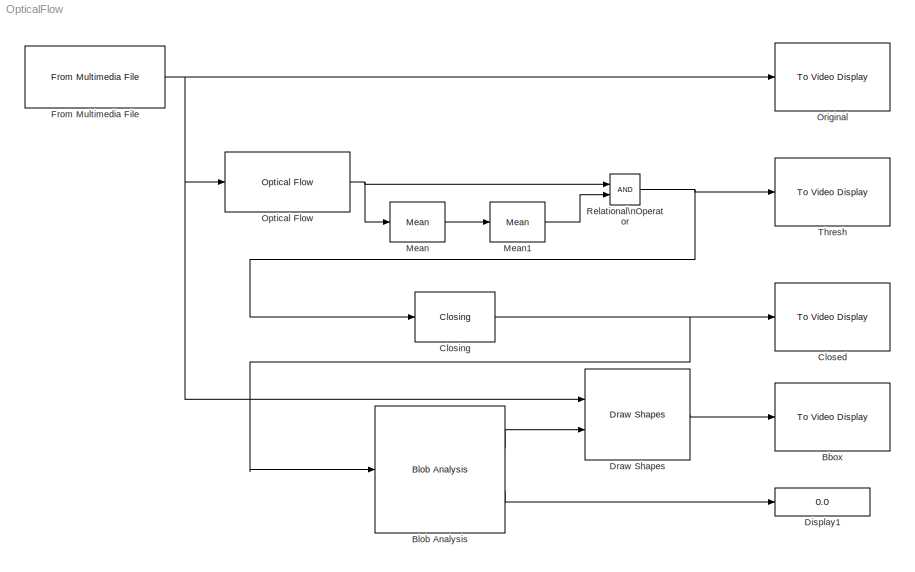
MODEL OpticalFlow
KIND model
BLOCK [Reference] Bbox  REF=vipsnks/To Video Display
  OutputDevice = On-screen video monitor
  Ports = [1]
  SID = 1
  SourceBlock = vipsnks/To Video Display
  SourceProductBaseCode = VP
  SourceProductName = Computer Vision Toolbox
  SourceType = To Video Display
  dataOrg = Column-major
  fullScreen = off
  imagePorts = One multidimensional signal
  inputType = Obsolete
  saveWindowSize = off
  videoWindowHeight = 41
  videoWindowWidth = 44
  videoWindowX = 289
  videoWindowY = 479
BLOCK [Reference] Blob Analysis  REF=vipstatistics/Blob Analysis
  LockScale = off
  Ports = [1, 2]
  SID = 2
  SourceBlock = vipstatistics/Blob Analysis
  SourceProductBaseCode = VP
  SourceProductName = Computer Vision Toolbox
  SourceType = Blob Analysis
  accumFracLength = 0
  accumMode = Binary point scaling
  accumWordLength = 32
  angle = off
  area = off
  bBox = on
  centroid = off
  conn = 8
  eccentricity = off
  equivDiameterSq = off
  excludeBorderBlob = off
  extent = off
  fillValues = -1
  firstCoeffFracLength = 14
  firstCoeffMode = Binary point scaling
  firstCoeffWordLength = 16
  isCount = on
  isFill = on
  isLabel = off
  isOutVarDim = off
  majorAxis = off
  maxArea = intmax('uint32')
  maxBlobs = 50
  memoryFracLength = 16
  memoryMode = Same as product output
  memoryWordLength = 32
  minArea = 200
  minorAxis = off
  outDT = double
  outputFracLength = 16
  outputMode = Binary point scaling
  outputWordLength = 32
  overflowMode = off
  perimeter = off
  prodOutputFracLength = 16
  prodOutputMode = Binary point scaling
  prodOutputWordLength = 32
  roundingMode = Floor
  secondCoeffFracLength = 16
  secondCoeffMode = Binary point scaling
  secondCoeffWordLength = 32
  useMaxArea = off
  useMinArea = on
  warnIfNumBlobsExceeded = on
BLOCK [Reference] Closed  REF=vipsnks/To Video Display
  OutputDevice = On-screen video monitor
  Ports = [1]
  SID = 3
  SourceBlock = vipsnks/To Video Display
  SourceProductBaseCode = VP
  SourceProductName = Computer Vision Toolbox
  SourceType = To Video Display
  dataOrg = Column-major
  fullScreen = off
  imagePorts = One multidimensional signal
  inputType = Obsolete
  saveWindowSize = off
  videoWindowHeight = 41
  videoWindowWidth = 44
  videoWindowX = 292
  videoWindowY = 332
BLOCK [Reference] Closing  REF=vipmorphops/Closing
  Ports = [1, 1]
  SID = 4
  SourceBlock = vipmorphops/Closing
  SourceProductBaseCode = VP
  SourceProductName = Computer Vision Toolbox
  SourceType = Closing
  nhoodsrc = Specify via dialog
  strel = strel('disk',5)
BLOCK [Display] Display1
  Decimation = 1
  Ports = [1]
  SID = 5
BLOCK [Reference] Draw Shapes  REF=viptextngfix/Draw Shapes
  Ports = [2, 1]
  SID = 6
  SourceBlock = viptextngfix/Draw Shapes
  SourceProductBaseCode = VP
  SourceProductName = Computer Vision Toolbox
  SourceType = Draw Shapes
  antialiasing = off
  color = [200 255 100]
  display = Black
  fill = off
  imagePorts = One multidimensional signal
  inType = Obsolete
  intensity = 200
  opacity = 0.6
  shape = Rectangles
  viewport = Entire image
BLOCK [Reference] From Multimedia File  REF=dspsrcs4/From Multimedia File
  Ports = [0, 1]
  SID = 7
  SourceBlock = dspsrcs4/From Multimedia File
  SourceProductBaseCode = DS
  SourceProductName = DSP System Toolbox
  SourceType = From Multimedia File
  audioDataType = int16
  colorVideoFormat = One multidimensional signal
  dataOrg = Column-major
  inheritSampleTime = on
  inputFilename = viptraffic.avi
  isIntensityVideo = on
  loop = on
  noAudioOutput = off
  numPlays = inf
  outputEOF = off
  outputStreams = Video only
  userDefinedSampleTime = 1/30
  videoDataType = double
BLOCK [Reference] Mean  REF=dspstat3/Mean
  LockScale = off
  Ports = [1, 1]
  SID = 8
  SourceBlock = dspstat3/Mean
  SourceProductBaseCode = DS
  SourceProductName = DSP System Toolbox
  SourceType = Mean
  accumFracLength = 30
  accumMode = Same as input
  accumWordLength = 32
  additionalParams = off
  allowOverrides = on
  dimension = 1
  directionMode = Entire input
  outputFracLength = 30
  outputMode = Same as accumulator
  outputWordLength = 32
  overflowMode = off
  reset_popup = None
  roiEnable = off
  roiFlag = off
  roiOutput = Individual statistics for each ROI
  roiPortion = Entire ROI
  roiType = Rectangles
  roundingMode = Floor
  run = off
  treatSBRowAsCol = on
BLOCK [Reference] Mean1  REF=dspstat3/Mean
  LockScale = off
  Ports = [1, 1]
  SID = 9
  SourceBlock = dspstat3/Mean
  SourceProductBaseCode = DS
  SourceProductName = DSP System Toolbox
  SourceType = Mean
  accumFracLength = 30
  accumMode = Same as input
  accumWordLength = 32
  additionalParams = off
  allowOverrides = on
  dimension = 1
  directionMode = Entire input
  outputFracLength = 30
  outputMode = Same as accumulator
  outputWordLength = 32
  overflowMode = off
  reset_popup = None
  roiEnable = off
  roiFlag = off
  roiOutput = Individual statistics for each ROI
  roiPortion = Entire ROI
  roiType = Rectangles
  roundingMode = Floor
  run = on
  treatSBRowAsCol = on
BLOCK [Reference] Optical Flow  REF=vipanalysis/Optical Flow
  FunctionWithSeparateData = off
  LockScale = off
  N = 1
  Ports = [1, 1]
  RTWMemSecDataConstants = Inherit from model
  RTWMemSecDataInternal = Inherit from model
  RTWMemSecDataParameters = Inherit from model
  RTWMemSecFuncExecute = Inherit from model
  RTWMemSecFuncInitTerm = Inherit from model
  SID = 10
  ShowPortLabels = FromPortIcon
  SourceBlock = vipanalysis/Optical Flow
  SourceProductBaseCode = VP
  SourceProductName = Computer Vision Toolbox
  SourceType = Optical Flow
  SystemSampleTime = -1
  accumFracLength = 20
  accumMode = Same as product output
  accumWordLength = 32
  discardNormalFlow = off
  eigTh = 0.0039
  firstCoeffFracLength = 12
  firstCoeffMode = Same word length as first input
  firstCoeffWordLength = 16
  gradMethod = Difference filter [-1 1]
  lambda = 1
  maxAllowAbsDiff = eps
  maxIter = 10
  memoryFracLength = 20
  memoryMode = Same as accumulator
  memoryWordLength = 32
  method = Horn-Schunck
  numInports = 3
  outVelForm = Magnitude-squared
  outputCurrentImage = off
  outputFracLength = 20
  outputMode = Binary point scaling
  outputWordLength = 32
  overflowMode = on
  prodOutputFracLength = 20
  prodOutputMode = Binary point scaling
  prodOutputWordLength = 32
  roundingMode = Nearest
  sigmaS = 1.5
  sigmaW = 1
  stop_criteria = When maximum number of iterations is reached
  which2img = Current frame and N-th frame back
BLOCK [Reference] Original  REF=vipsnks/To Video Display
  OutputDevice = On-screen video monitor
  Ports = [1]
  SID = 11
  SourceBlock = vipsnks/To Video Display
  SourceProductBaseCode = VP
  SourceProductName = Computer Vision Toolbox
  SourceType = To Video Display
  dataOrg = Column-major
  fullScreen = off
  imagePorts = One multidimensional signal
  inputType = Obsolete
  saveWindowSize = off
  videoWindowHeight = 41
  videoWindowWidth = 44
  videoWindowX = 292
  videoWindowY = 32
BLOCK [RelationalOperator] Relational\nOperator
  InputSameDT = off
  OutDataTypeStr = boolean
  Ports = [2, 1]
  SID = 12
BLOCK [Reference] Thresh  REF=vipsnks/To Video Display
  OutputDevice = On-screen video monitor
  Ports = [1]
  SID = 13
  SourceBlock = vipsnks/To Video Display
  SourceProductBaseCode = VP
  SourceProductName = Computer Vision Toolbox
  SourceType = To Video Display
  dataOrg = Column-major
  fullScreen = off
  imagePorts = One multidimensional signal
  inputType = Obsolete
  saveWindowSize = off
  videoWindowHeight = 41
  videoWindowWidth = 44
  videoWindowX = 292
  videoWindowY = 180
LINE Blob Analysis:1 -> Draw Shapes:2
LINE Blob Analysis:2 -> Display1:1
NET Closing:1 -> Blob Analysis:1, Closed:1
LINE Draw Shapes:1 -> Bbox:1
NET From Multimedia File:1 -> Draw Shapes:1, Optical Flow:1, Original:1
LINE Mean1:1 -> Relational\nOperator:2
LINE Mean:1 -> Mean1:1
NET Optical Flow:1 -> Mean:1, Relational\nOperator:1
NET Relational\nOperator:1 -> Closing:1, Thresh:1
note: NET lines group one-source signal fan-out (src -> all destinations, sorted); 1:1 wires keep LINE
